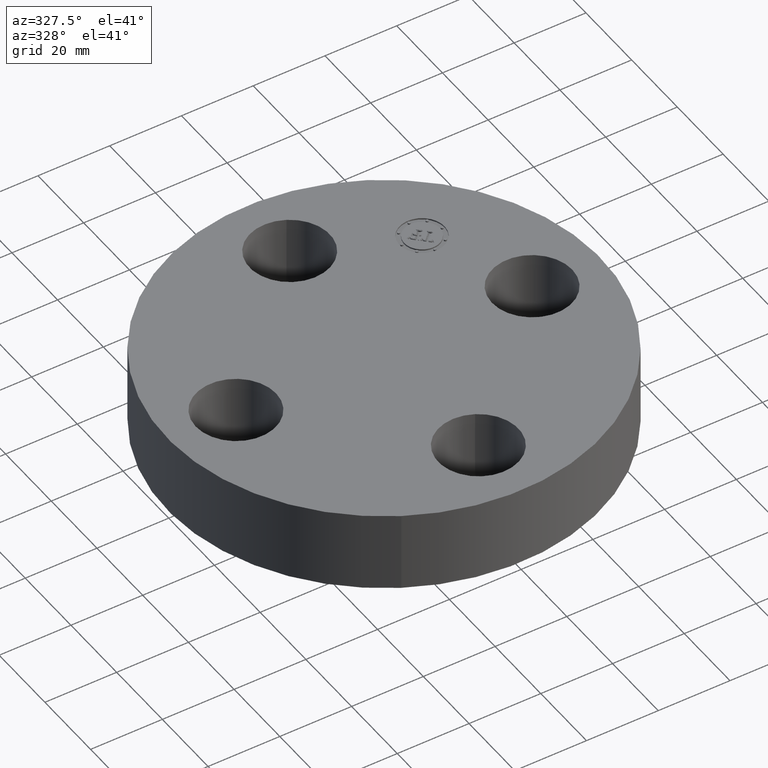
[diagram: clean part render]
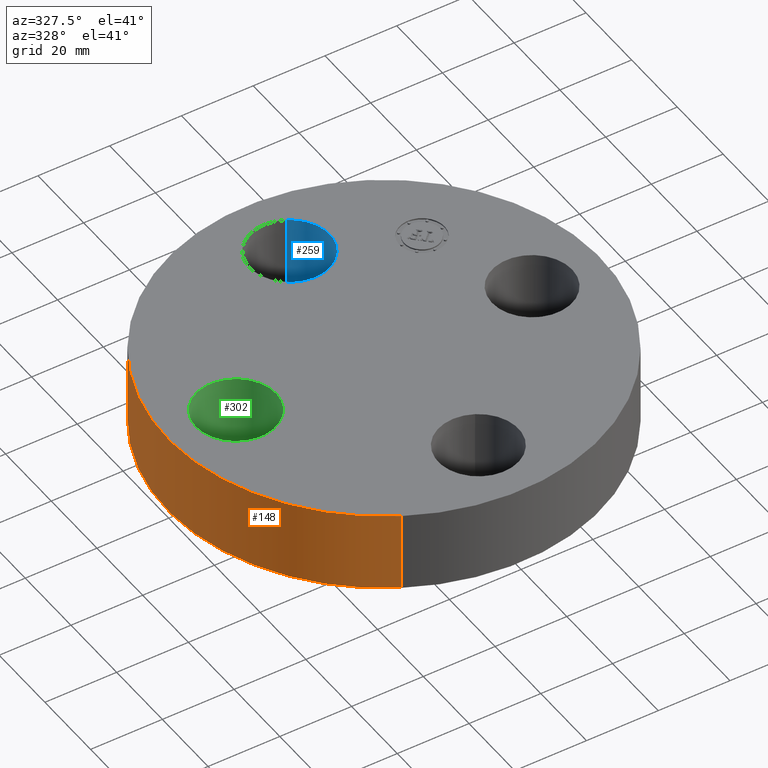
[diagram: same view with three faces highlighted in distinct colors, each labeled with its STEP entity id]
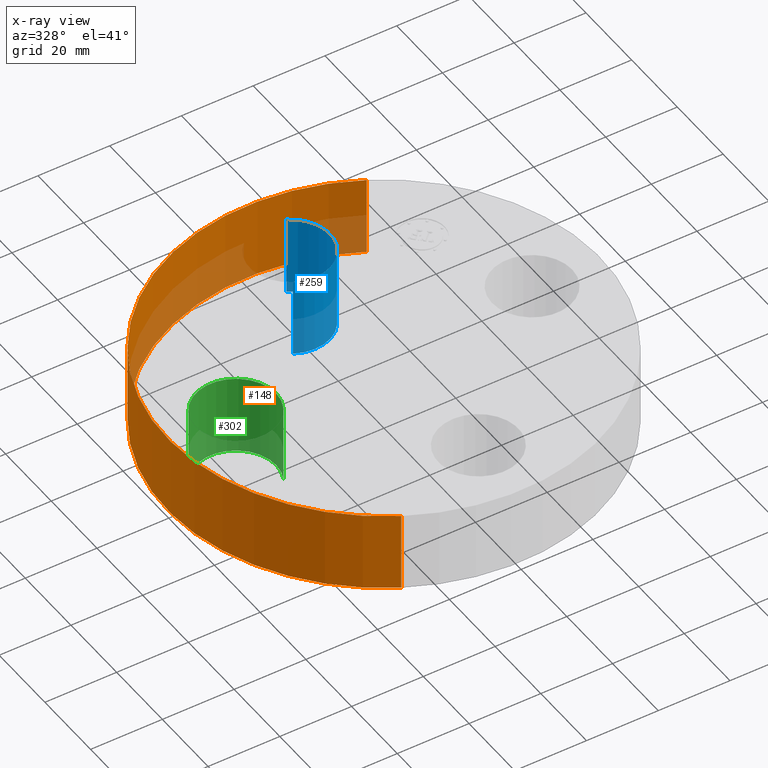
[diagram: x-ray of the same camera — body ghosted, the three highlighted faces saturated]
A machine part, auxiliary view with three faces highlighted in distinct colors.
The next image is the same camera in x-ray (body ghosted, the three faces saturated) — at least one of them is partly hidden behind the body in this view.
Their STEP definitions:

[orange] entity #148 — the highlighted cylindrical surface (partial cylindrical patch) has radius 60.325 mm, axis along (0, 0, -1).
#95=AXIS2_PLACEMENT_3D('Cylinder Axis2P3D',#92,#93,#94) ;
#134=AXIS2_PLACEMENT_3D('Circle Axis2P3D',#132,#133,$) ;
#139=AXIS2_PLACEMENT_3D('Circle Axis2P3D',#137,#138,$) ;
#92=CARTESIAN_POINT('Axis2P3D Location',(0.,0.,0.440000000002)) ;
#101=CARTESIAN_POINT('Vertex',(1.13863565419,2.0842585845,2.09805925913E-016)) ;
#103=CARTESIAN_POINT('Vertex',(-1.13863565419,-2.0842585845,2.09805925913E-016)) ;
#106=CARTESIAN_POINT('Line Origine',(1.13863565419,2.0842585845,0.440000000002)) ;
#110=CARTESIAN_POINT('Vertex',(1.13863565419,2.0842585845,0.880000000004)) ;
#117=CARTESIAN_POINT('Vertex',(-1.13863565419,-2.0842585845,0.880000000004)) ;
#120=CARTESIAN_POINT('Line Origine',(-1.13863565419,-2.0842585845,0.440000000002)) ;
#132=CARTESIAN_POINT('Axis2P3D Location',(0.,0.,1.39870617276E-016)) ;
#137=CARTESIAN_POINT('Axis2P3D Location',(0.,0.,0.880000000004)) ;
#93=DIRECTION('Axis2P3D Direction',(0.,0.,-0.0393700787402)) ;
#94=DIRECTION('Axis2P3D XDirection',(-0.0188750212049,-0.0345504945626,0.)) ;
#107=DIRECTION('Vector Direction',(0.,0.,-0.0393700787402)) ;
#121=DIRECTION('Vector Direction',(0.,0.,-0.0393700787402)) ;
#133=DIRECTION('Axis2P3D Direction',(0.,0.,-0.0393700787402)) ;
#138=DIRECTION('Axis2P3D Direction',(0.,0.,-0.0393700787402)) ;
#108=VECTOR('Line Direction',#107,0.0393700787402) ;
#122=VECTOR('Line Direction',#121,0.0393700787402) ;
#143=ORIENTED_EDGE('',*,*,#136,.F.) ;
#144=ORIENTED_EDGE('',*,*,#124,.T.) ;
#145=ORIENTED_EDGE('',*,*,#141,.T.) ;
#146=ORIENTED_EDGE('',*,*,#112,.F.) ;
#148=ADVANCED_FACE('PartBody',(#147),#96,.T.) ;
#135=CIRCLE('generated circle',#134,2.37500000001) ;
#140=CIRCLE('generated circle',#139,2.37500000001) ;
#96=CYLINDRICAL_SURFACE('generated cylinder',#95,2.37500000001) ;
#112=EDGE_CURVE('',#102,#111,#109,.F.) ;
#124=EDGE_CURVE('',#104,#118,#123,.F.) ;
#136=EDGE_CURVE('',#104,#102,#135,.T.) ;
#141=EDGE_CURVE('',#118,#111,#140,.T.) ;
#142=EDGE_LOOP('',(#143,#144,#145,#146)) ;
#147=FACE_OUTER_BOUND('',#142,.T.) ;
#109=LINE('Line',#106,#108) ;
#123=LINE('Line',#120,#122) ;
#102=VERTEX_POINT('',#101) ;
#104=VERTEX_POINT('',#103) ;
#111=VERTEX_POINT('',#110) ;
#118=VERTEX_POINT('',#117) ;

[blue] entity #259 — the highlighted cylindrical surface (partial cylindrical patch) has radius 11.176 mm, axis along (0, 0, -1).
#209=AXIS2_PLACEMENT_3D('Circle Axis2P3D',#207,#208,$) ;
#220=AXIS2_PLACEMENT_3D('Cylinder Axis2P3D',#217,#218,#219) ;
#250=AXIS2_PLACEMENT_3D('Circle Axis2P3D',#248,#249,$) ;
#202=CARTESIAN_POINT('Vertex',(-0.210947236987,1.23886367277,0.)) ;
#204=CARTESIAN_POINT('Vertex',(0.210947236987,2.01113632724,0.)) ;
#207=CARTESIAN_POINT('Axis2P3D Location',(-2.09805925913E-016,1.62500000001,0.)) ;
#217=CARTESIAN_POINT('Axis2P3D Location',(-2.98507657293E-016,1.62500000001,0.87606299213)) ;
#222=CARTESIAN_POINT('Line Origine',(-0.210947236987,1.23886367277,0.440000000002)) ;
#226=CARTESIAN_POINT('Vertex',(-0.210947236987,1.23886367277,0.880000000004)) ;
#229=CARTESIAN_POINT('Line Origine',(0.210947236987,2.01113632724,0.440000000002)) ;
#233=CARTESIAN_POINT('Vertex',(0.210947236987,2.01113632724,0.880000000004)) ;
#248=CARTESIAN_POINT('Axis2P3D Location',(-2.98507657293E-016,1.62500000001,0.880000000004)) ;
#208=DIRECTION('Axis2P3D Direction',(0.,0.,-0.0393700787402)) ;
#218=DIRECTION('Axis2P3D Direction',(0.,0.,-0.0393700787402)) ;
#219=DIRECTION('Axis2P3D XDirection',(0.0188750212049,0.0345504945626,0.)) ;
#223=DIRECTION('Vector Direction',(0.,0.,-0.0393700787402)) ;
#230=DIRECTION('Vector Direction',(0.,0.,-0.0393700787402)) ;
#249=DIRECTION('Axis2P3D Direction',(0.,0.,-0.0393700787402)) ;
#224=VECTOR('Line Direction',#223,0.0393700787402) ;
#231=VECTOR('Line Direction',#230,0.0393700787402) ;
#254=ORIENTED_EDGE('',*,*,#235,.F.) ;
#255=ORIENTED_EDGE('',*,*,#211,.T.) ;
#256=ORIENTED_EDGE('',*,*,#228,.T.) ;
#257=ORIENTED_EDGE('',*,*,#252,.F.) ;
#259=ADVANCED_FACE('PartBody',(#258),#221,.F.) ;
#210=CIRCLE('generated circle',#209,0.440000000002) ;
#251=CIRCLE('generated circle',#250,0.440000000002) ;
#221=CYLINDRICAL_SURFACE('generated cylinder',#220,0.440000000002) ;
#211=EDGE_CURVE('',#205,#203,#210,.T.) ;
#228=EDGE_CURVE('',#203,#227,#225,.F.) ;
#235=EDGE_CURVE('',#205,#234,#232,.F.) ;
#252=EDGE_CURVE('',#234,#227,#251,.T.) ;
#253=EDGE_LOOP('',(#254,#255,#256,#257)) ;
#258=FACE_OUTER_BOUND('',#253,.T.) ;
#225=LINE('Line',#222,#224) ;
#232=LINE('Line',#229,#231) ;
#203=VERTEX_POINT('',#202) ;
#205=VERTEX_POINT('',#204) ;
#227=VERTEX_POINT('',#226) ;
#234=VERTEX_POINT('',#233) ;

[green] entity #302 — the highlighted cylindrical surface (partial cylindrical patch) has radius 11.176 mm, axis along (-0, 0, -1).
#191=AXIS2_PLACEMENT_3D('Circle Axis2P3D',#189,#190,$) ;
#263=AXIS2_PLACEMENT_3D('Cylinder Axis2P3D',#260,#261,#262) ;
#293=AXIS2_PLACEMENT_3D('Circle Axis2P3D',#291,#292,$) ;
#184=CARTESIAN_POINT('Vertex',(-1.23886367277,-0.210947236987,0.)) ;
#186=CARTESIAN_POINT('Vertex',(-2.01113632724,0.210947236987,0.)) ;
#189=CARTESIAN_POINT('Axis2P3D Location',(-1.62500000001,-2.09805925913E-016,0.)) ;
#260=CARTESIAN_POINT('Axis2P3D Location',(-1.62500000001,-1.99005104862E-016,0.87606299213)) ;
#265=CARTESIAN_POINT('Line Origine',(-1.23886367277,-0.210947236987,0.440000000002)) ;
#269=CARTESIAN_POINT('Vertex',(-1.23886367277,-0.210947236987,0.880000000004)) ;
#272=CARTESIAN_POINT('Line Origine',(-2.01113632724,0.210947236987,0.440000000002)) ;
#276=CARTESIAN_POINT('Vertex',(-2.01113632724,0.210947236987,0.880000000004)) ;
#291=CARTESIAN_POINT('Axis2P3D Location',(-1.62500000001,-1.99005104862E-016,0.880000000004)) ;
#190=DIRECTION('Axis2P3D Direction',(0.,0.,-0.0393700787402)) ;
#261=DIRECTION('Axis2P3D Direction',(-0.,0.,-0.0393700787402)) ;
#262=DIRECTION('Axis2P3D XDirection',(-0.0345504945626,0.0188750212049,0.)) ;
#266=DIRECTION('Vector Direction',(0.,0.,-0.0393700787402)) ;
#273=DIRECTION('Vector Direction',(0.,0.,-0.0393700787402)) ;
#292=DIRECTION('Axis2P3D Direction',(-0.,0.,-0.0393700787402)) ;
#267=VECTOR('Line Direction',#266,0.0393700787402) ;
#274=VECTOR('Line Direction',#273,0.0393700787402) ;
#297=ORIENTED_EDGE('',*,*,#278,.F.) ;
#298=ORIENTED_EDGE('',*,*,#193,.T.) ;
#299=ORIENTED_EDGE('',*,*,#271,.T.) ;
#300=ORIENTED_EDGE('',*,*,#295,.F.) ;
#302=ADVANCED_FACE('PartBody',(#301),#264,.F.) ;
#192=CIRCLE('generated circle',#191,0.440000000002) ;
#294=CIRCLE('generated circle',#293,0.440000000002) ;
#264=CYLINDRICAL_SURFACE('generated cylinder',#263,0.440000000002) ;
#193=EDGE_CURVE('',#187,#185,#192,.T.) ;
#271=EDGE_CURVE('',#185,#270,#268,.F.) ;
#278=EDGE_CURVE('',#187,#277,#275,.F.) ;
#295=EDGE_CURVE('',#277,#270,#294,.T.) ;
#296=EDGE_LOOP('',(#297,#298,#299,#300)) ;
#301=FACE_OUTER_BOUND('',#296,.T.) ;
#268=LINE('Line',#265,#267) ;
#275=LINE('Line',#272,#274) ;
#185=VERTEX_POINT('',#184) ;
#187=VERTEX_POINT('',#186) ;
#270=VERTEX_POINT('',#269) ;
#277=VERTEX_POINT('',#276) ;